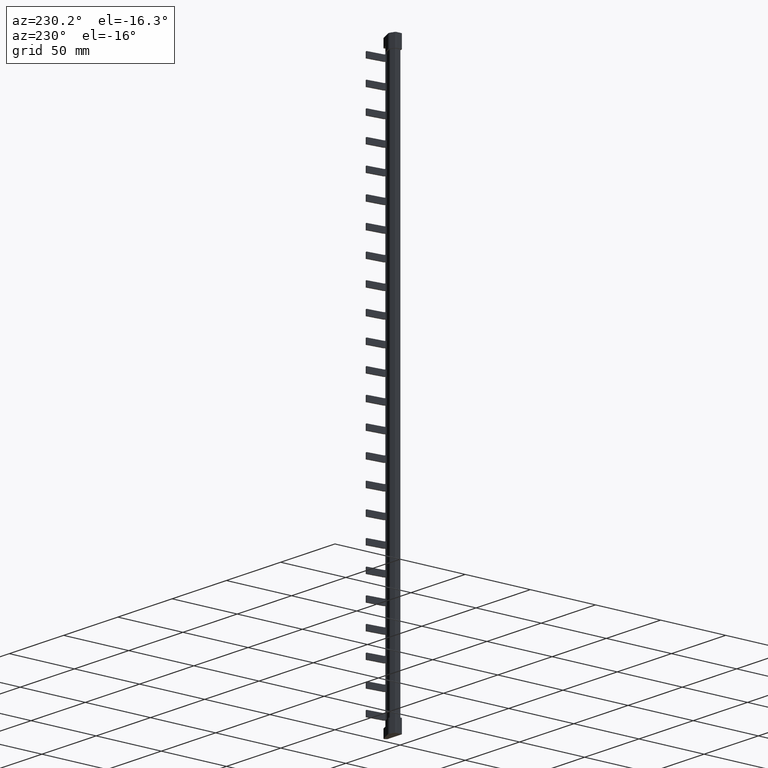
[diagram: clean part render]
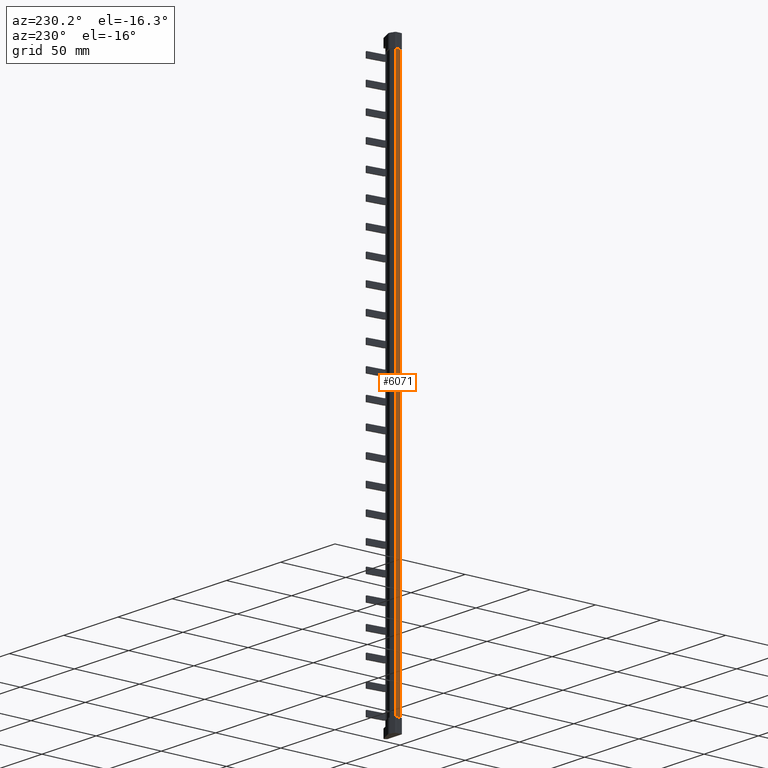
[diagram: same view with one face highlighted and labeled with its STEP entity id]
A machine part, auxiliary view. The second image highlights one B-rep face of the part: STEP entity #6071.
In plain terms, the highlighted planar face has unit normal (1, 0, -0).
Its self-contained STEP definition (entity closure, byte-faithful):
#2733 = ORIENTED_EDGE ( 'NONE', *, *, #19098, .T. ) ;
#2750 = ORIENTED_EDGE ( 'NONE', *, *, #26517, .F. ) ;
#2775 = ORIENTED_EDGE ( 'NONE', *, *, #19075, .F. ) ;
#2782 = ORIENTED_EDGE ( 'NONE', *, *, #19056, .T. ) ;
#3099 = EDGE_LOOP ( 'NONE', ( #2750, #2733, #2782, #2775 ) ) ;
#3747 = AXIS2_PLACEMENT_3D ( 'NONE', #27396, #27399, #27419 ) ;
#6071 = ADVANCED_FACE ( 'NONE', ( #27397 ), #27408, .F. ) ;
#8678 = LINE ( 'NONE', #8739, #11263 ) ;
#8733 = DIRECTION ( 'NONE',  ( 1.136590875544364300E-008, -0.9999999999999998900, 3.944304527801444700E-031 ) ) ;
#8739 = CARTESIAN_POINT ( 'NONE',  ( -0.4999997511312341300, 3.963709902452906800, -200.9000000000000100 ) ) ;
#8829 = CARTESIAN_POINT ( 'NONE',  ( -0.4999999999999449300, 0.5000000000000004400, 219.0000000000000000 ) ) ;
#8838 = DIRECTION ( 'NONE',  ( -0.0000000000000000000, -0.0000000000000000000, -1.000000000000000000 ) ) ;
#8867 = LINE ( 'NONE', #8829, #18167 ) ;
#8951 = CARTESIAN_POINT ( 'NONE',  ( -0.5000000000000466300, 3.615511274208504900, 219.0000000000000000 ) ) ;
#8980 = DIRECTION ( 'NONE',  ( -0.0000000000000000000, -0.0000000000000000000, -1.000000000000000000 ) ) ;
#9020 = LINE ( 'NONE', #8951, #18180 ) ;
#9464 = CARTESIAN_POINT ( 'NONE',  ( -0.4999997471736403200, 3.615511274208507600, -200.9000000000000100 ) ) ;
#9490 = CARTESIAN_POINT ( 'NONE',  ( -0.4999997117630233800, 0.4999999943170493900, 209.9000000000000100 ) ) ;
#9501 = CARTESIAN_POINT ( 'NONE',  ( -0.4999997117630233800, 0.4999999943170493900, -200.9000000000000100 ) ) ;
#10515 = CARTESIAN_POINT ( 'NONE',  ( -0.4999997471736403200, 3.615511274208507600, 209.9000000000000100 ) ) ;
#11263 = VECTOR ( 'NONE', #8733, 1000.000000000000100 ) ;
#18167 = VECTOR ( 'NONE', #8838, 1000.000000000000000 ) ;
#18180 = VECTOR ( 'NONE', #8980, 1000.000000000000000 ) ;
#19056 = EDGE_CURVE ( 'NONE', #35837, #35891, #8678, .T. ) ;
#19075 = EDGE_CURVE ( 'NONE', #35270, #35891, #8867, .T. ) ;
#19098 = EDGE_CURVE ( 'NONE', #35145, #35837, #9020, .T. ) ;
#25696 = CARTESIAN_POINT ( 'NONE',  ( -0.4999999999999271700, -5.682891657265358600E-009, 209.9000000000000100 ) ) ;
#25709 = DIRECTION ( 'NONE',  ( 3.563533965728333600E-014, -1.000000000000000000, -3.939912128522177000E-031 ) ) ;
#25733 = LINE ( 'NONE', #25696, #30757 ) ;
#26517 = EDGE_CURVE ( 'NONE', #35145, #35270, #25733, .T. ) ;
#27396 = CARTESIAN_POINT ( 'NONE',  ( -0.5000000000000559600, 3.615511274208504900, 219.0000000000000000 ) ) ;
#27397 = FACE_OUTER_BOUND ( 'NONE', #3099, .T. ) ;
#27399 = DIRECTION ( 'NONE',  ( 1.000000000000000000, 3.563533965728333600E-014, -0.0000000000000000000 ) ) ;
#27408 = PLANE ( 'NONE',  #3747 ) ;
#27419 = DIRECTION ( 'NONE',  ( -3.563533965728333600E-014, 1.000000000000000000, 0.0000000000000000000 ) ) ;
#30757 = VECTOR ( 'NONE', #25709, 1000.000000000000000 ) ;
#35145 = VERTEX_POINT ( 'NONE', #10515 ) ;
#35270 = VERTEX_POINT ( 'NONE', #9490 ) ;
#35837 = VERTEX_POINT ( 'NONE', #9464 ) ;
#35891 = VERTEX_POINT ( 'NONE', #9501 ) ;